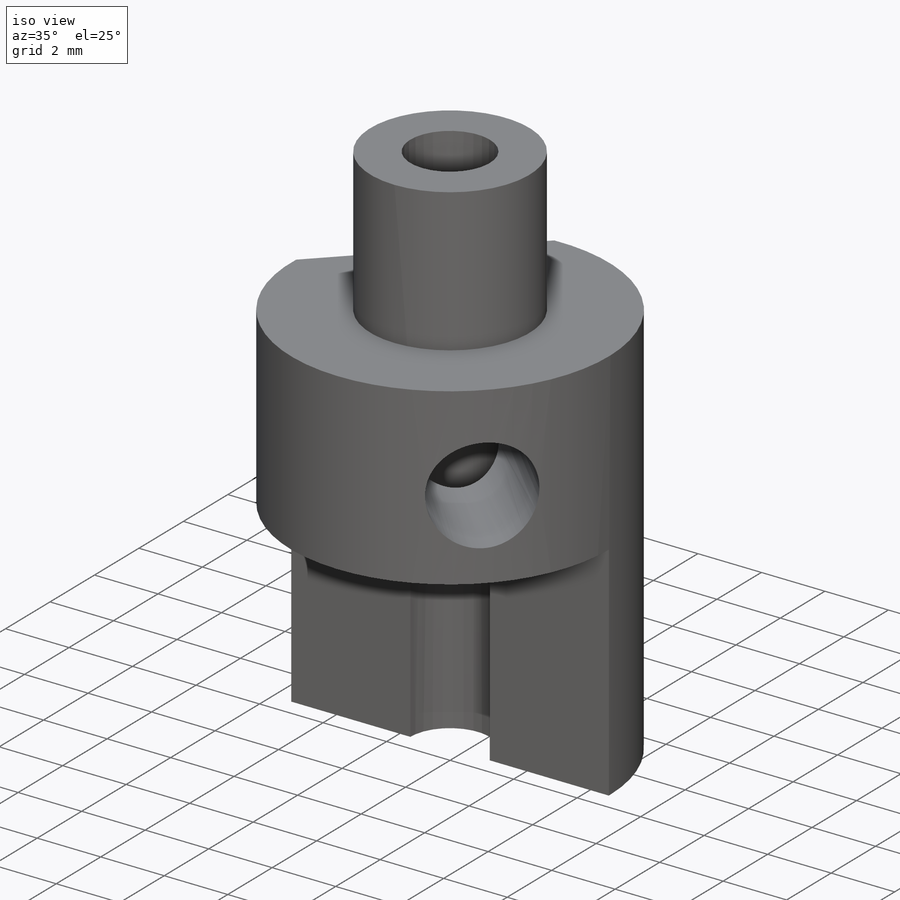
[diagram: iso view]
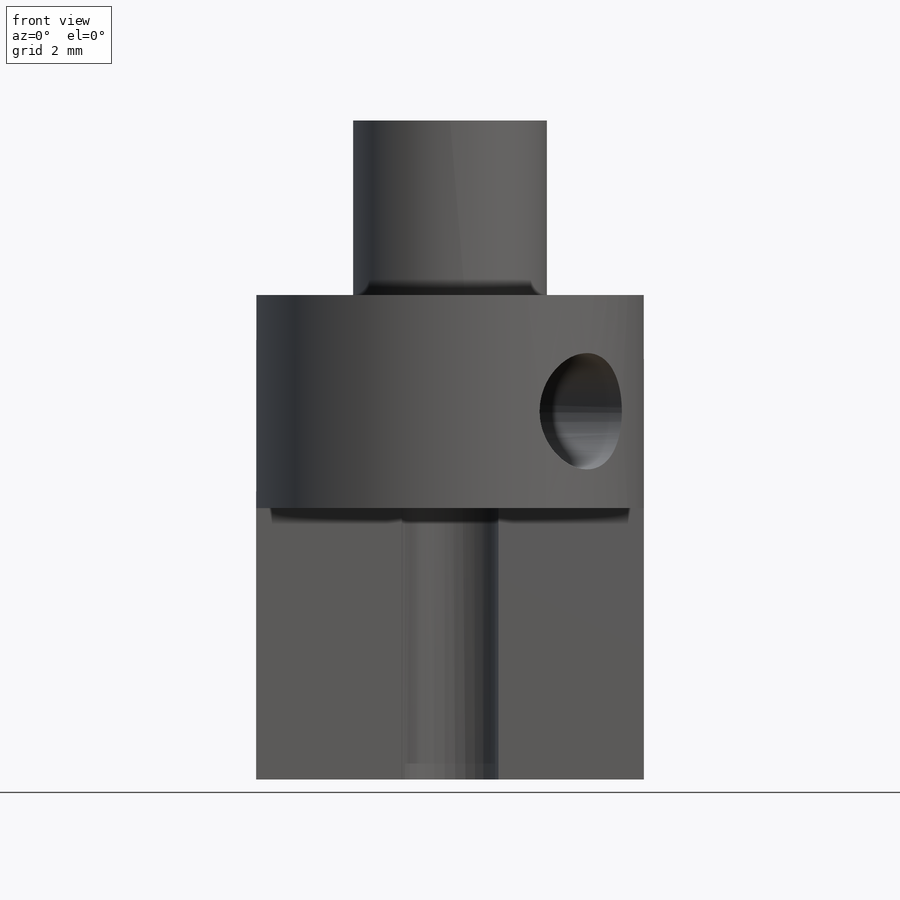
[diagram: front view]
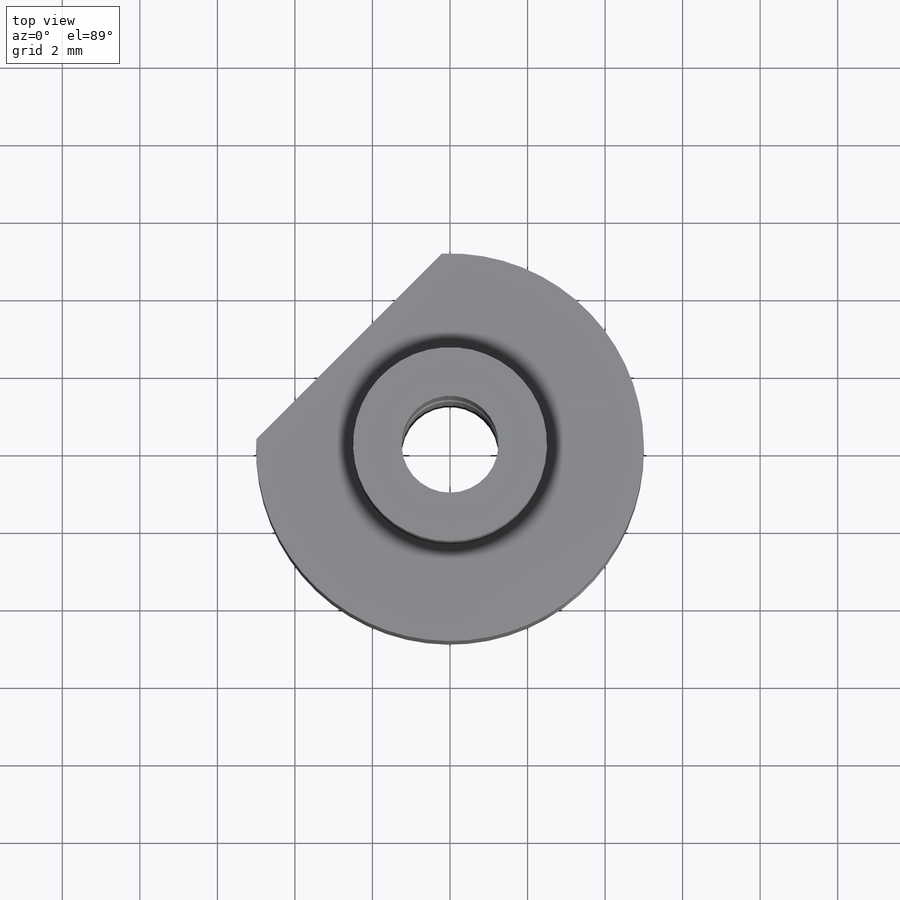
[diagram: top view]
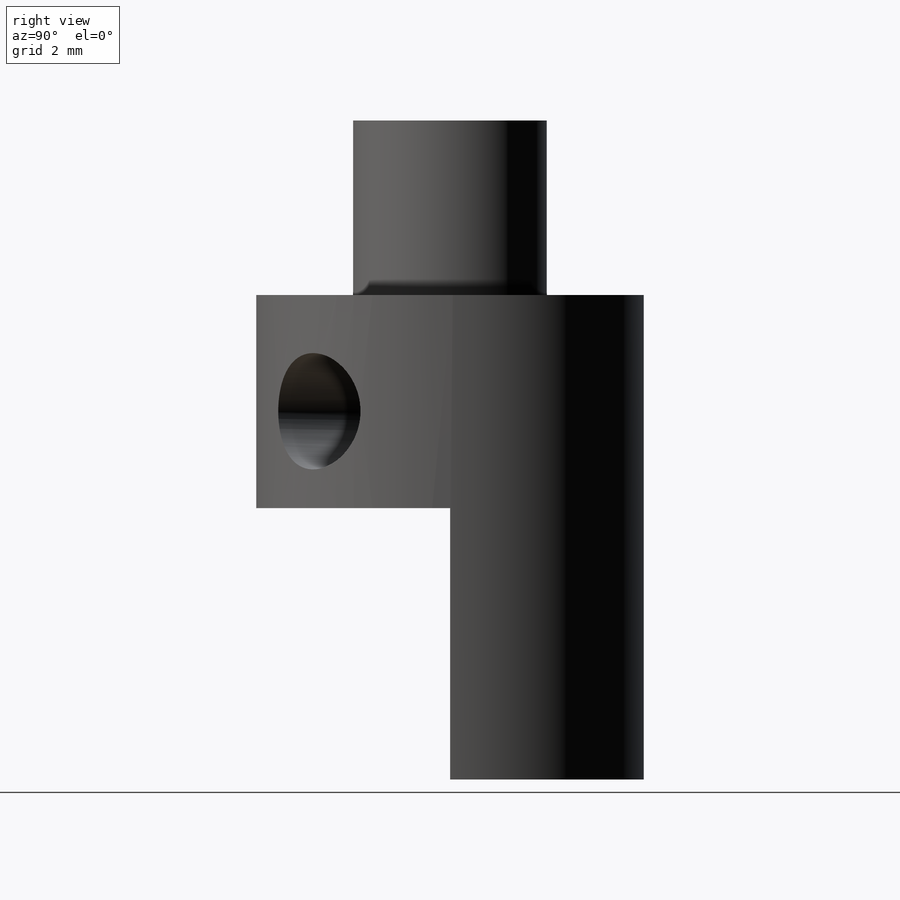
[diagram: right view]
SOLIDWORKS PART (.sldprt)
format: sldprt  version: not decoded by parser v0  size: 221,184 bytes
history: native  units: mm
features: plane x4, sketch x4, cut_extrude x3, material x1, revolve x1 (+14 scaffold rows collapsed)
feature tree (27):
  scaffold x14  (default folders/planes/origin — collapsed)
  material  "2024-T4"
  plane  "Спереди"
  plane  "Сверху"
  plane  "Справа"
  sketch  "Эскиз1"  dims[c1.D1=14.0mm c1.D2=6.0mm c1.D3=5.0mm c1.D4=16.0mm c2.D3=11.0mm c2.D4=4.5mm c2.D5=2.5mm c2.D6=5.0mm c3.D5=2.5mm c3.D7=1.25mm c3.D1=2.5mm c3.D2=14.0mm c4.D5=5.0mm c4.D2=17.0mm]
  revolve  "Повернуть1"  Angle=360deg
  sketch  "Эскиз2"
  cut_extrude  "Вырез-Вытянуть1"  Depth=7mm
  sketch  "Эскиз3"  dims[c1.D1=~3.307696mm c2.D1=45.0deg c2.D2=~3.68269mm]
  cut_extrude  "Вырез-Вытянуть2"  [1 undecoded]
  plane  "Плоскость2"
  sketch  "Эскиз5"  dims[D1=3.0mm D2=3.0mm]
  cut_extrude  "Вырез-Вытянуть3"  [1 undecoded]
decode coverage: 5 of 8 modeling features carry decoded parameters
note: ~ marks probable driven/reference dimensions
note: 2 parameter values undecoded
note: suppression state not decoded; provenance and decode notes live in map.json
